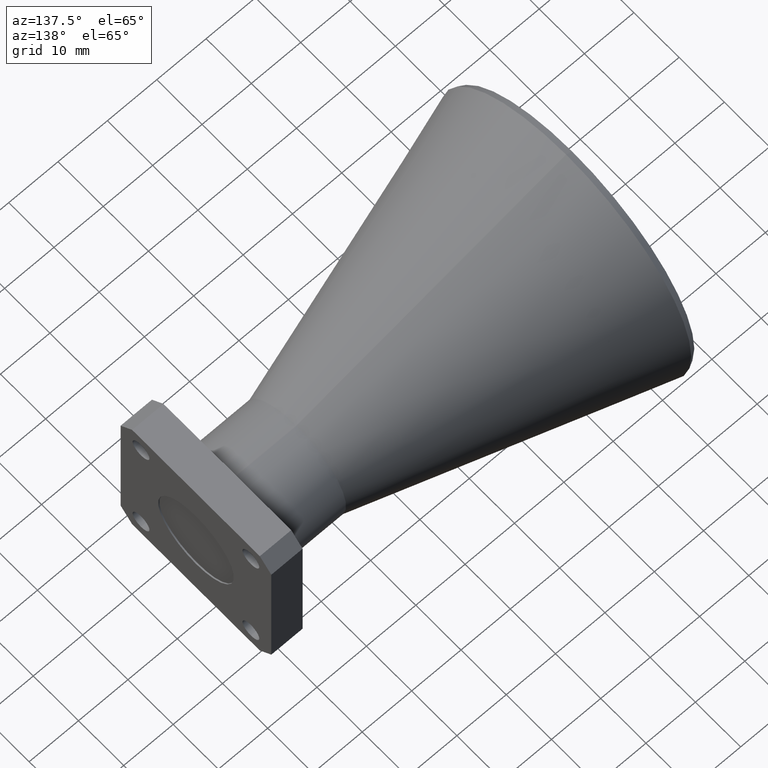
[diagram: clean part render]
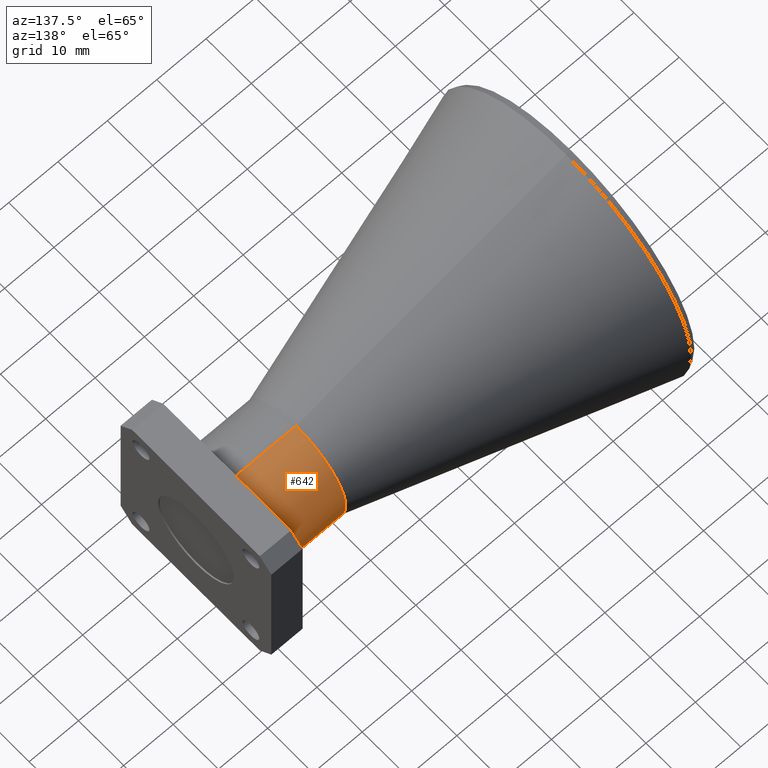
[diagram: same view with one face highlighted and labeled with its STEP entity id]
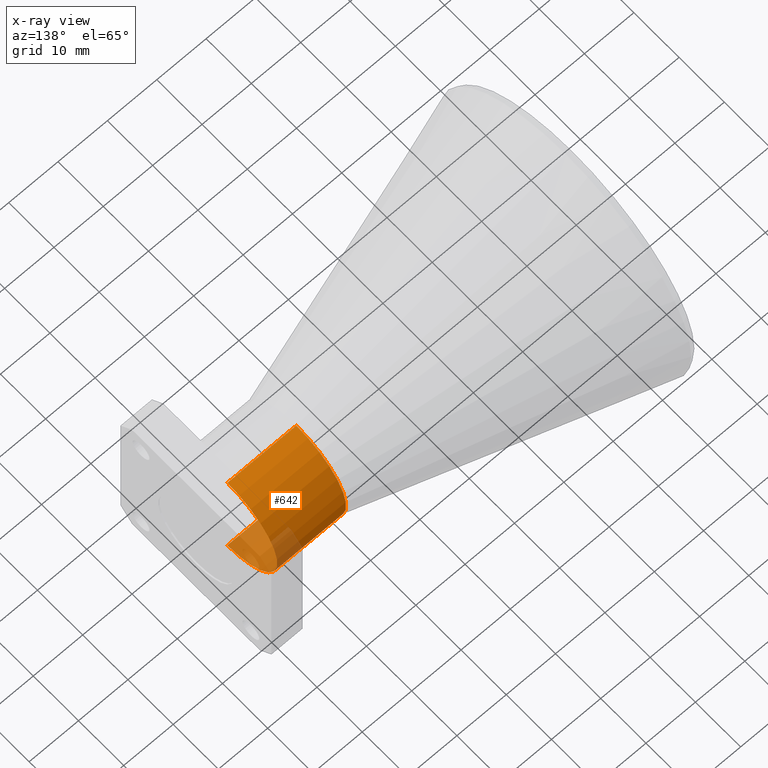
[diagram: x-ray of the same camera — body ghosted, the highlighted face saturated]
A machine part, auxiliary view. The second image highlights one B-rep face of the part: STEP entity #642.
The next image is the same camera in x-ray: the body ghosted, the highlighted face saturated — about 21% of this face is hidden behind the body in this view.
In plain terms, the highlighted cylindrical surface (partial cylindrical patch) has radius 11.0372 mm, axis along (-1, -0, -0).
Its self-contained STEP definition (entity closure, byte-faithful):
#1 = DIRECTION ( 'NONE',  ( -1.000000000000000000, -0.0000000000000000000, -0.0000000000000000000 ) ) ;
#7 = CIRCLE ( 'NONE', #852, 0.4345345844151258200 ) ;
#8 = DIRECTION ( 'NONE',  ( -1.000000000000000000, -0.0000000000000000000, -0.0000000000000000000 ) ) ;
#21 = LINE ( 'NONE', #595, #364 ) ;
#26 = AXIS2_PLACEMENT_3D ( 'NONE', #833, #275, #775 ) ;
#27 = ORIENTED_EDGE ( 'NONE', *, *, #394, .F. ) ;
#40 = AXIS2_PLACEMENT_3D ( 'NONE', #599, #1, #439 ) ;
#81 = DIRECTION ( 'NONE',  ( -1.000000000000000000, -0.0000000000000000000, -0.0000000000000000000 ) ) ;
#108 = VERTEX_POINT ( 'NONE', #470 ) ;
#185 = CARTESIAN_POINT ( 'NONE',  ( 2.750000000000000400, 5.321513879228091000E-017, -0.4345345844151257700 ) ) ;
#221 = CARTESIAN_POINT ( 'NONE',  ( 0.0000000000000000000, 0.0000000000000000000, 0.4345345844151258200 ) ) ;
#275 = DIRECTION ( 'NONE',  ( -1.000000000000000000, -0.0000000000000000000, -0.0000000000000000000 ) ) ;
#289 = DIRECTION ( 'NONE',  ( 0.0000000000000000000, 0.0000000000000000000, 1.000000000000000000 ) ) ;
#292 = CARTESIAN_POINT ( 'NONE',  ( 2.750000000000000400, 0.0000000000000000000, 0.4345345844151257700 ) ) ;
#299 = VECTOR ( 'NONE', #8, 39.37007874015748100 ) ;
#321 = VERTEX_POINT ( 'NONE', #786 ) ;
#363 = VERTEX_POINT ( 'NONE', #292 ) ;
#364 = VECTOR ( 'NONE', #863, 39.37007874015748100 ) ;
#394 = EDGE_CURVE ( 'NONE', #363, #108, #873, .T. ) ;
#403 = EDGE_CURVE ( 'NONE', #108, #321, #7, .T. ) ;
#439 = DIRECTION ( 'NONE',  ( 0.0000000000000000000, 0.0000000000000000000, 1.000000000000000000 ) ) ;
#460 = CYLINDRICAL_SURFACE ( 'NONE', #26, 0.4345345844151258200 ) ;
#470 = CARTESIAN_POINT ( 'NONE',  ( 2.200000000000000200, 0.0000000000000000000, 0.4345345844151258200 ) ) ;
#482 = EDGE_CURVE ( 'NONE', #363, #635, #620, .T. ) ;
#522 = CARTESIAN_POINT ( 'NONE',  ( 2.200000000000000200, 0.0000000000000000000, 0.0000000000000000000 ) ) ;
#595 = CARTESIAN_POINT ( 'NONE',  ( 0.0000000000000000000, 5.321513879228091600E-017, -0.4345345844151258200 ) ) ;
#599 = CARTESIAN_POINT ( 'NONE',  ( 2.750000000000000400, 0.0000000000000000000, 0.0000000000000000000 ) ) ;
#620 = CIRCLE ( 'NONE', #40, 0.4345345844151257700 ) ;
#635 = VERTEX_POINT ( 'NONE', #185 ) ;
#642 = ADVANCED_FACE ( 'NONE', ( #763 ), #460, .T. ) ;
#712 = ORIENTED_EDGE ( 'NONE', *, *, #482, .T. ) ;
#763 = FACE_OUTER_BOUND ( 'NONE', #828, .T. ) ;
#769 = ORIENTED_EDGE ( 'NONE', *, *, #403, .F. ) ;
#775 = DIRECTION ( 'NONE',  ( 0.0000000000000000000, 0.0000000000000000000, 1.000000000000000000 ) ) ;
#786 = CARTESIAN_POINT ( 'NONE',  ( 2.200000000000000200, 9.334885147968763800E-017, -0.4345345844151258200 ) ) ;
#825 = EDGE_CURVE ( 'NONE', #635, #321, #21, .T. ) ;
#828 = EDGE_LOOP ( 'NONE', ( #712, #882, #769, #27 ) ) ;
#833 = CARTESIAN_POINT ( 'NONE',  ( 0.0000000000000000000, 0.0000000000000000000, 0.0000000000000000000 ) ) ;
#852 = AXIS2_PLACEMENT_3D ( 'NONE', #522, #81, #289 ) ;
#863 = DIRECTION ( 'NONE',  ( -1.000000000000000000, -0.0000000000000000000, -0.0000000000000000000 ) ) ;
#873 = LINE ( 'NONE', #221, #299 ) ;
#882 = ORIENTED_EDGE ( 'NONE', *, *, #825, .T. ) ;